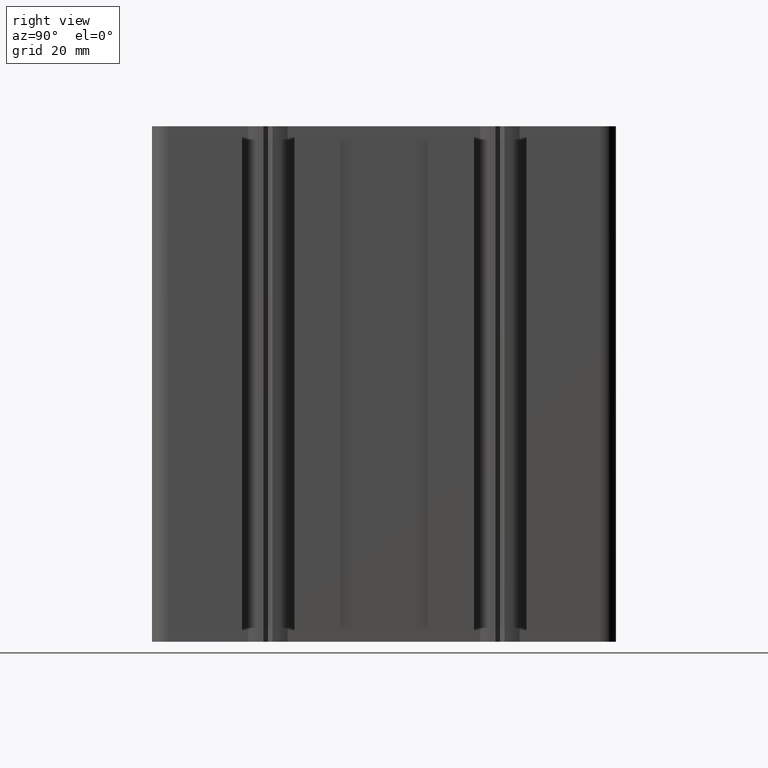
[diagram: clean part render]
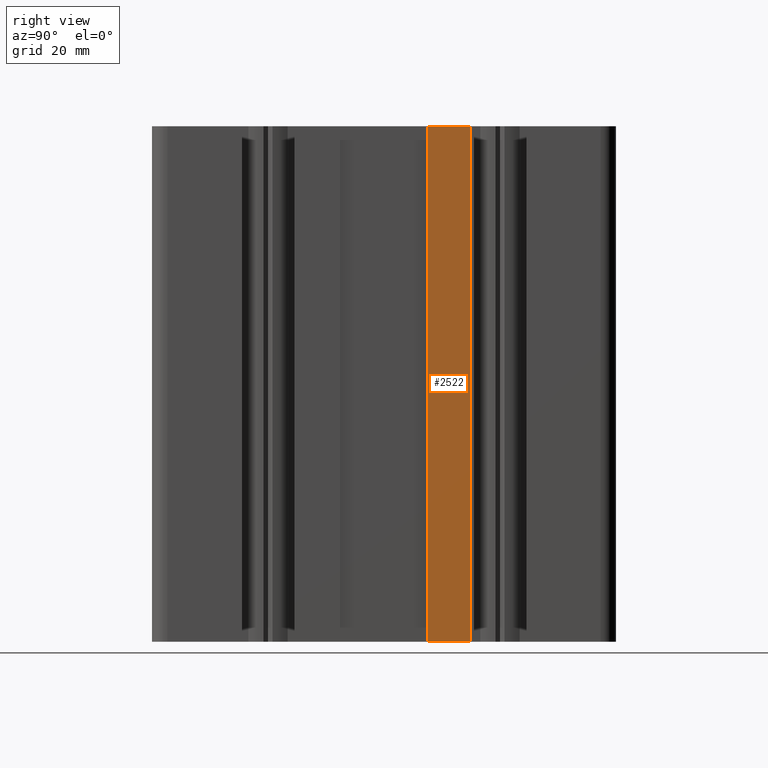
[diagram: same view with one face highlighted and labeled with its STEP entity id]
A machine part, right view. The second image highlights one B-rep face of the part: STEP entity #2522.
In plain terms, the highlighted planar face has unit normal (-1, 0, 0).
Its self-contained STEP definition (entity closure, byte-faithful):
#1588 = VERTEX_POINT ( 'NONE', #6790 ) ;
#1638 = EDGE_CURVE ( 'NONE', #1588, #1645, #6918, .T. ) ;
#1645 = VERTEX_POINT ( 'NONE', #6888 ) ;
#2513 = EDGE_CURVE ( 'NONE', #1588, #4110, #7937, .T. ) ;
#2520 = EDGE_CURVE ( 'NONE', #1645, #4125, #7927, .T. ) ;
#2521 = ORIENTED_EDGE ( 'NONE', *, *, #2520, .F. ) ;
#2522 = ADVANCED_FACE ( 'NONE', ( #7929 ), #7943, .F. ) ;
#2532 = EDGE_LOOP ( 'NONE', ( #2566, #2521, #2569, #2568 ) ) ;
#2566 = ORIENTED_EDGE ( 'NONE', *, *, #4114, .T. ) ;
#2568 = ORIENTED_EDGE ( 'NONE', *, *, #2513, .T. ) ;
#2569 = ORIENTED_EDGE ( 'NONE', *, *, #1638, .F. ) ;
#4110 = VERTEX_POINT ( 'NONE', #10232 ) ;
#4114 = EDGE_CURVE ( 'NONE', #4110, #4125, #10227, .T. ) ;
#4125 = VERTEX_POINT ( 'NONE', #10271 ) ;
#6790 = CARTESIAN_POINT ( 'NONE',  ( 22.50000000000000000, 8.499999999999998200, 100.0000000000000000 ) ) ;
#6888 = CARTESIAN_POINT ( 'NONE',  ( 22.50000000000000000, 16.70000099999999000, 100.0000000000000000 ) ) ;
#6914 = DIRECTION ( 'NONE',  ( 0.0000000000000000000, 1.000000000000000000, 0.0000000000000000000 ) ) ;
#6915 = VECTOR ( 'NONE', #6914, 1000.000000000000000 ) ;
#6916 = CARTESIAN_POINT ( 'NONE',  ( 22.50000000000000000, 8.499999999999998200, 100.0000000000000000 ) ) ;
#6918 = LINE ( 'NONE', #6916, #6915 ) ;
#7919 = AXIS2_PLACEMENT_3D ( 'NONE', #7928, #7922, #7979 ) ;
#7922 = DIRECTION ( 'NONE',  ( -1.000000000000000000, 0.0000000000000000000, 0.0000000000000000000 ) ) ;
#7923 = DIRECTION ( 'NONE',  ( -0.0000000000000000000, -0.0000000000000000000, -1.000000000000000000 ) ) ;
#7924 = VECTOR ( 'NONE', #7923, 1000.000000000000000 ) ;
#7925 = CARTESIAN_POINT ( 'NONE',  ( 22.50000000000000000, 16.70000099999999000, 100.0000000000000000 ) ) ;
#7927 = LINE ( 'NONE', #7925, #7924 ) ;
#7928 = CARTESIAN_POINT ( 'NONE',  ( 22.50000000000000000, 8.499999999999998200, 100.0000000000000000 ) ) ;
#7929 = FACE_OUTER_BOUND ( 'NONE', #2532, .T. ) ;
#7934 = DIRECTION ( 'NONE',  ( -0.0000000000000000000, -0.0000000000000000000, -1.000000000000000000 ) ) ;
#7935 = VECTOR ( 'NONE', #7934, 1000.000000000000000 ) ;
#7936 = CARTESIAN_POINT ( 'NONE',  ( 22.50000000000000000, 8.499999999999998200, 100.0000000000000000 ) ) ;
#7937 = LINE ( 'NONE', #7936, #7935 ) ;
#7943 = PLANE ( 'NONE',  #7919 ) ;
#7979 = DIRECTION ( 'NONE',  ( 0.0000000000000000000, 0.0000000000000000000, 1.000000000000000000 ) ) ;
#10223 = DIRECTION ( 'NONE',  ( 0.0000000000000000000, 1.000000000000000000, 0.0000000000000000000 ) ) ;
#10224 = VECTOR ( 'NONE', #10223, 1000.000000000000000 ) ;
#10225 = CARTESIAN_POINT ( 'NONE',  ( 22.50000000000000000, 8.499999999999998200, 0.0000000000000000000 ) ) ;
#10227 = LINE ( 'NONE', #10225, #10224 ) ;
#10232 = CARTESIAN_POINT ( 'NONE',  ( 22.50000000000000000, 8.499999999999998200, 0.0000000000000000000 ) ) ;
#10271 = CARTESIAN_POINT ( 'NONE',  ( 22.50000000000000000, 16.70000099999999000, 0.0000000000000000000 ) ) ;